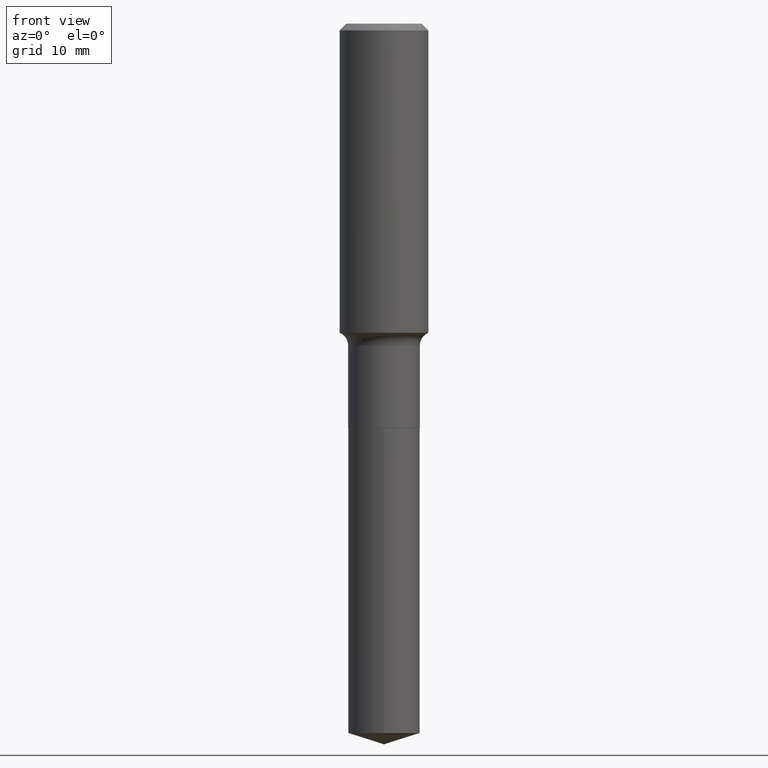
[diagram: clean part render]
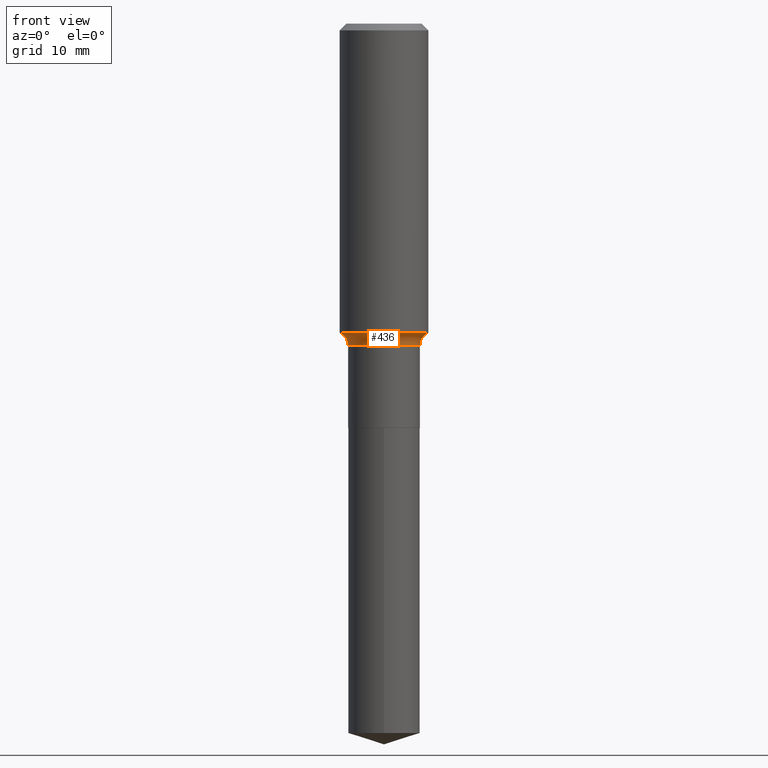
[diagram: same view with one face highlighted and labeled with its STEP entity id]
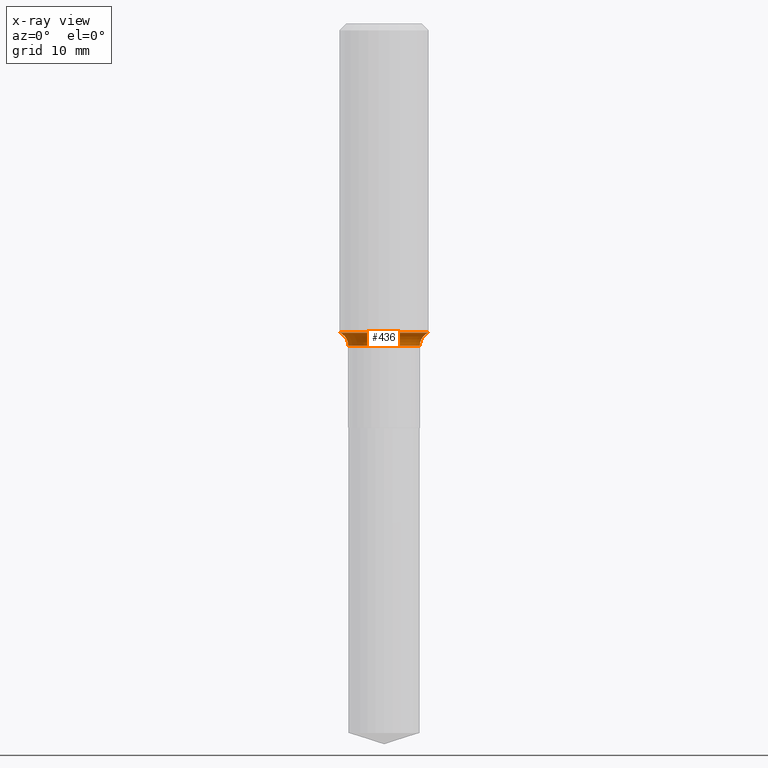
[diagram: x-ray of the same camera — body ghosted, the highlighted face saturated]
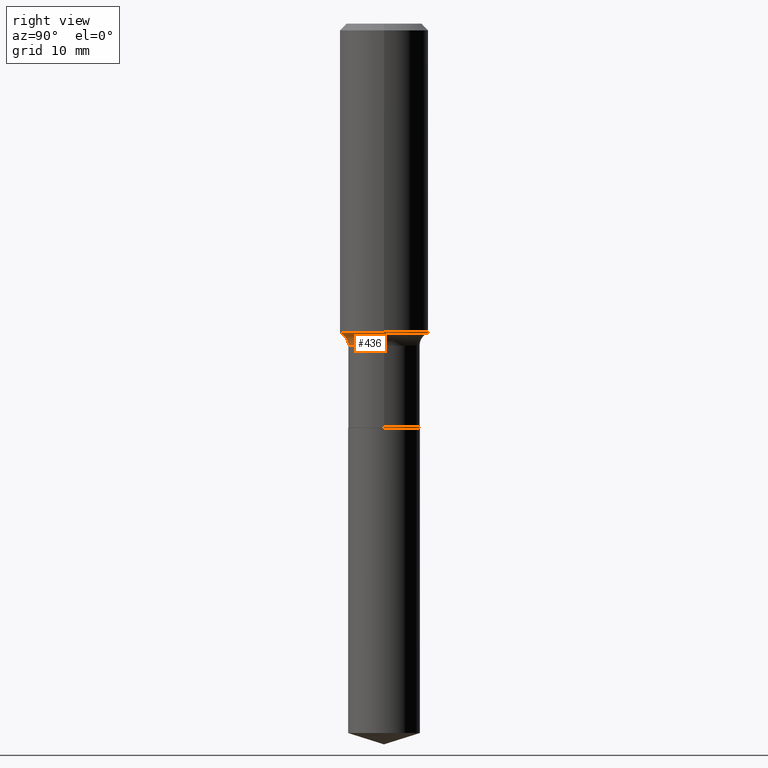
[diagram: same view with one face highlighted and labeled with its STEP entity id]
A machine part, front view. The second image highlights one B-rep face of the part: STEP entity #436.
The next image is the same camera in x-ray: the body ghosted, the highlighted face saturated — about 0% of this face is hidden behind the body in this view.
A second angle (right view) of the same face is appended — the face is thin or edge-on in the first view.
In plain terms, the highlighted toroidal blend (fillet) surface has major radius 7.112 mm and minor (blend) radius 1.9812 mm.
Its self-contained STEP definition (entity closure, byte-faithful):
#4 = CARTESIAN_POINT ( 'NONE',  ( 4.260984847896982161E-29, -6.083557084800297028E-15, -1.742399999999999949 ) ) ;
#34 = FACE_OUTER_BOUND ( 'NONE', #404, .T. ) ;
#47 = AXIS2_PLACEMENT_3D ( 'NONE', #225, #150, #313 ) ;
#105 = DIRECTION ( 'NONE',  ( -2.445468806185136597E-29, 3.491481338843145583E-15, 1.000000000000000000 ) ) ;
#112 = EDGE_CURVE ( 'NONE', #147, #378, #288, .T. ) ;
#115 = VERTEX_POINT ( 'NONE', #146 ) ;
#117 = AXIS2_PLACEMENT_3D ( 'NONE', #377, #339, #309 ) ;
#146 = CARTESIAN_POINT ( 'NONE',  ( 0.2500000000000002220, -7.829297754221866861E-15, -1.742399999999999949 ) ) ;
#147 = VERTEX_POINT ( 'NONE', #194 ) ;
#149 = EDGE_CURVE ( 'NONE', #115, #372, #152, .T. ) ;
#150 = DIRECTION ( 'NONE',  ( -6.982962677686266711E-15, -1.000000000000000000, 3.491481338843145583E-15 ) ) ;
#152 = CIRCLE ( 'NONE', #47, 0.07800000000000002764 ) ;
#160 = EDGE_CURVE ( 'NONE', #378, #372, #282, .T. ) ;
#181 = CARTESIAN_POINT ( 'NONE',  ( 4.437058601942312503E-29, -6.334943741197003797E-15, -1.814400000000000235 ) ) ;
#182 = EDGE_CURVE ( 'NONE', #147, #115, #486, .T. ) ;
#183 = CARTESIAN_POINT ( 'NONE',  ( -0.2799999999999999711, -4.345424081068723876E-15, -1.814400000000000235 ) ) ;
#194 = CARTESIAN_POINT ( 'NONE',  ( -0.2500000000000002220, -4.307200245400044985E-15, -1.742399999999999949 ) ) ;
#202 = ORIENTED_EDGE ( 'NONE', *, *, #182, .F. ) ;
#219 = CARTESIAN_POINT ( 'NONE',  ( -0.2019999999999999574, -5.709845659640153480E-15, -1.814400000000000235 ) ) ;
#225 = CARTESIAN_POINT ( 'NONE',  ( 0.2799999999999999711, -8.290173290949158003E-15, -1.814400000000000235 ) ) ;
#252 = AXIS2_PLACEMENT_3D ( 'NONE', #183, #458, #341 ) ;
#269 = DIRECTION ( 'NONE',  ( 1.000000000000000000, -6.982962677686265922E-15, 0.000000000000000000 ) ) ;
#282 = CIRCLE ( 'NONE', #117, 0.2019999999999999574 ) ;
#288 = CIRCLE ( 'NONE', #252, 0.07800000000000002764 ) ;
#296 = CARTESIAN_POINT ( 'NONE',  ( 0.2019999999999999574, -7.745502202089629956E-15, -1.814400000000000235 ) ) ;
#308 = ORIENTED_EDGE ( 'NONE', *, *, #149, .F. ) ;
#309 = DIRECTION ( 'NONE',  ( 1.000000000000000000, -6.982962677686266711E-15, 0.000000000000000000 ) ) ;
#313 = DIRECTION ( 'NONE',  ( 1.000000000000000000, -6.982962677686280910E-15, 0.000000000000000000 ) ) ;
#330 = ORIENTED_EDGE ( 'NONE', *, *, #160, .T. ) ;
#336 = ORIENTED_EDGE ( 'NONE', *, *, #112, .T. ) ;
#338 = DIRECTION ( 'NONE',  ( 1.000000000000000000, -6.982962677686265133E-15, 4.883557194083111780E-29 ) ) ;
#339 = DIRECTION ( 'NONE',  ( -2.445468806185136597E-29, 3.491481338843145583E-15, 1.000000000000000000 ) ) ;
#341 = DIRECTION ( 'NONE',  ( -1.000000000000000000, 7.105427357601001859E-15, 0.000000000000000000 ) ) ;
#361 = TOROIDAL_SURFACE ( 'NONE', #376, 0.2799999999999999711, 0.07800000000000006928 ) ;
#364 = DIRECTION ( 'NONE',  ( -2.445468806185136597E-29, 3.491481338843145583E-15, 1.000000000000000000 ) ) ;
#372 = VERTEX_POINT ( 'NONE', #296 ) ;
#376 = AXIS2_PLACEMENT_3D ( 'NONE', #181, #364, #338 ) ;
#377 = CARTESIAN_POINT ( 'NONE',  ( 4.437058601942312503E-29, -6.334943741197003797E-15, -1.814400000000000235 ) ) ;
#378 = VERTEX_POINT ( 'NONE', #219 ) ;
#404 = EDGE_LOOP ( 'NONE', ( #202, #336, #330, #308 ) ) ;
#436 = ADVANCED_FACE ( 'NONE', ( #34 ), #361, .F. ) ;
#448 = AXIS2_PLACEMENT_3D ( 'NONE', #4, #105, #269 ) ;
#458 = DIRECTION ( 'NONE',  ( 7.105427357601001859E-15, 1.000000000000000000, -3.491481338843145583E-15 ) ) ;
#486 = CIRCLE ( 'NONE', #448, 0.2500000000000001665 ) ;